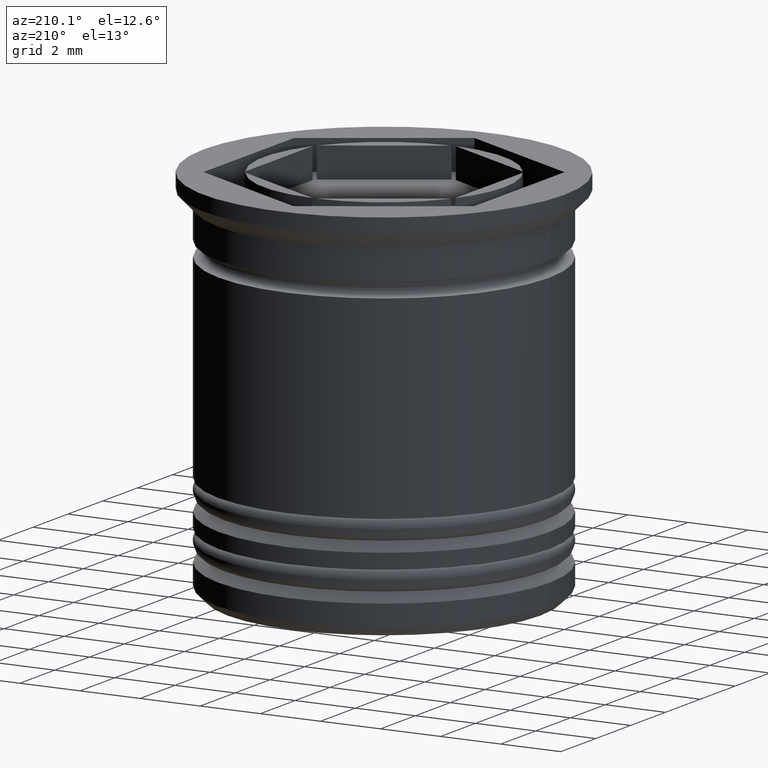
[diagram: clean part render]
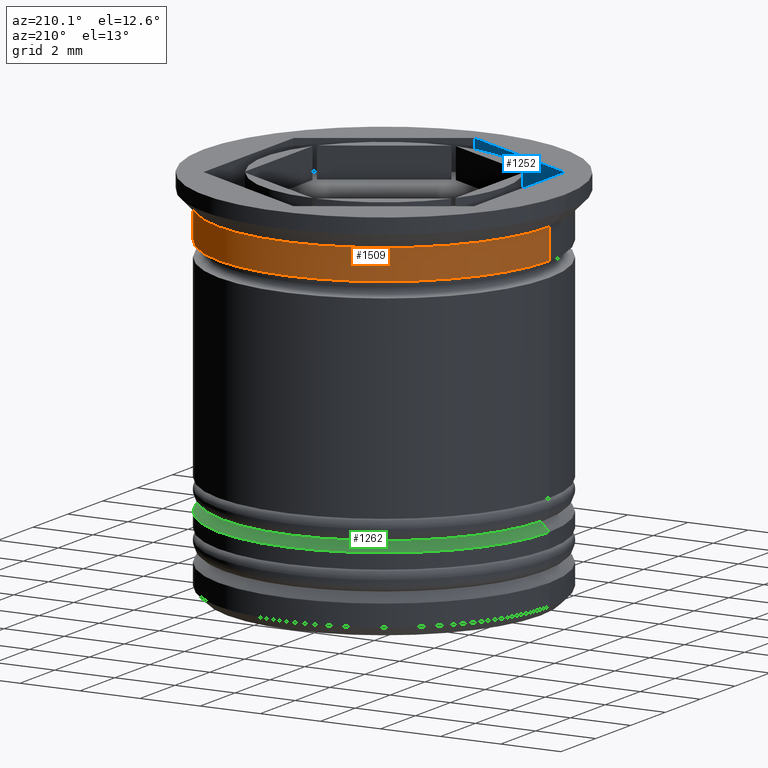
[diagram: same view with three faces highlighted in distinct colors, each labeled with its STEP entity id]
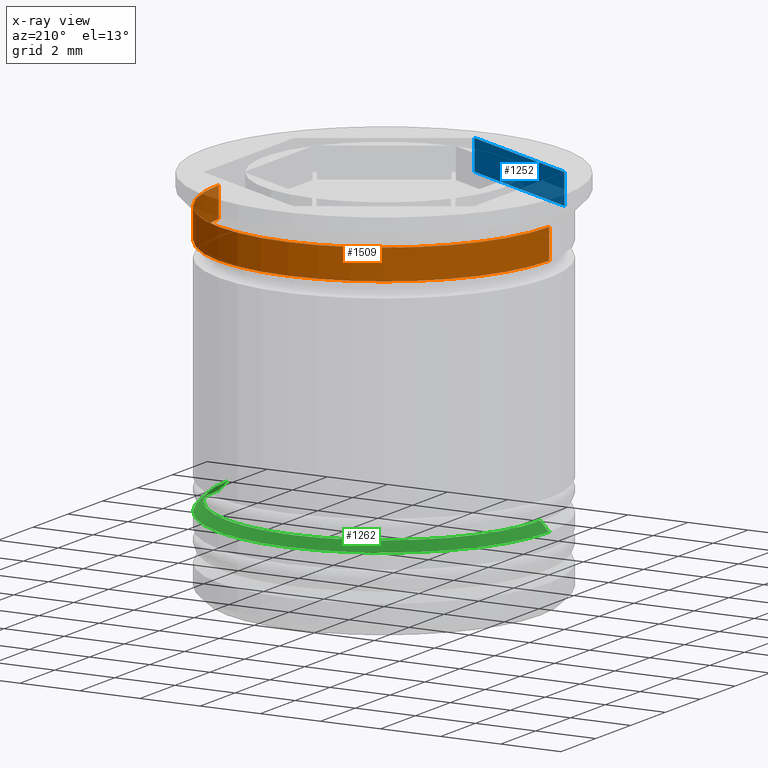
[diagram: x-ray of the same camera — body ghosted, the three highlighted faces saturated]
A machine part, auxiliary view with three faces highlighted in distinct colors.
The next image is the same camera in x-ray (body ghosted, the three faces saturated) — at least one of them is partly hidden behind the body in this view.
Their STEP definitions:

[orange] entity #1509 — the highlighted cylindrical surface (partial cylindrical patch) has radius 5.5 mm, axis along (-0, -0, 1).
#35 = AXIS2_PLACEMENT_3D ( 'NONE', #255, #1148, #1163 ) ;
#45 = EDGE_LOOP ( 'NONE', ( #1837, #1501, #1808, #1612 ) ) ;
#102 = DIRECTION ( 'NONE',  ( -0.000000000000000000, -0.000000000000000000, 1.000000000000000000 ) ) ;
#145 = VERTEX_POINT ( 'NONE', #224 ) ;
#224 = CARTESIAN_POINT ( 'NONE',  ( -5.499999999999998224, 6.735557395310440051E-16, -0.9999999999999997780 ) ) ;
#251 = VERTEX_POINT ( 'NONE', #1050 ) ;
#255 = CARTESIAN_POINT ( 'NONE',  ( 0.000000000000000000, 0.000000000000000000, -0.9999999999999997780 ) ) ;
#393 = CARTESIAN_POINT ( 'NONE',  ( 0.000000000000000000, 0.000000000000000000, 0.000000000000000000 ) ) ;
#454 = DIRECTION ( 'NONE',  ( 1.000000000000000000, 0.000000000000000000, 0.000000000000000000 ) ) ;
#545 = CIRCLE ( 'NONE', #611, 5.499999999999999112 ) ;
#603 = VERTEX_POINT ( 'NONE', #1742 ) ;
#610 = EDGE_CURVE ( 'NONE', #1484, #603, #1957, .T. ) ;
#611 = AXIS2_PLACEMENT_3D ( 'NONE', #1762, #1690, #454 ) ;
#710 = CARTESIAN_POINT ( 'NONE',  ( 5.499999999999999112, 0.000000000000000000, -2.000000000000000444 ) ) ;
#803 = CIRCLE ( 'NONE', #35, 5.499999999999998224 ) ;
#881 = CARTESIAN_POINT ( 'NONE',  ( -5.499999999999998224, 6.735557395310440051E-16, 0.000000000000000000 ) ) ;
#891 = DIRECTION ( 'NONE',  ( -0.000000000000000000, -0.000000000000000000, 1.000000000000000000 ) ) ;
#1050 = CARTESIAN_POINT ( 'NONE',  ( -5.499999999999999112, 6.735557395310442023E-16, -2.000000000000000444 ) ) ;
#1090 = AXIS2_PLACEMENT_3D ( 'NONE', #393, #102, #1605 ) ;
#1148 = DIRECTION ( 'NONE',  ( -0.000000000000000000, -0.000000000000000000, 1.000000000000000000 ) ) ;
#1163 = DIRECTION ( 'NONE',  ( 1.000000000000000000, 0.000000000000000000, 0.000000000000000000 ) ) ;
#1330 = LINE ( 'NONE', #881, #1927 ) ;
#1470 = EDGE_CURVE ( 'NONE', #603, #145, #803, .T. ) ;
#1484 = VERTEX_POINT ( 'NONE', #710 ) ;
#1493 = DIRECTION ( 'NONE',  ( -0.000000000000000000, -0.000000000000000000, 1.000000000000000000 ) ) ;
#1501 = ORIENTED_EDGE ( 'NONE', *, *, #1540, .T. ) ;
#1509 = ADVANCED_FACE ( 'NONE', ( #1644 ), #1940, .T. ) ;
#1540 = EDGE_CURVE ( 'NONE', #251, #145, #1330, .T. ) ;
#1548 = EDGE_CURVE ( 'NONE', #1484, #251, #545, .T. ) ;
#1594 = VECTOR ( 'NONE', #891, 1000.000000000000000 ) ;
#1605 = DIRECTION ( 'NONE',  ( 1.000000000000000000, 0.000000000000000000, 0.000000000000000000 ) ) ;
#1612 = ORIENTED_EDGE ( 'NONE', *, *, #610, .F. ) ;
#1644 = FACE_OUTER_BOUND ( 'NONE', #45, .T. ) ;
#1690 = DIRECTION ( 'NONE',  ( -0.000000000000000000, -0.000000000000000000, 1.000000000000000000 ) ) ;
#1742 = CARTESIAN_POINT ( 'NONE',  ( 5.499999999999998224, 0.000000000000000000, -0.9999999999999997780 ) ) ;
#1762 = CARTESIAN_POINT ( 'NONE',  ( 0.000000000000000000, 0.000000000000000000, -2.000000000000000444 ) ) ;
#1808 = ORIENTED_EDGE ( 'NONE', *, *, #1470, .F. ) ;
#1837 = ORIENTED_EDGE ( 'NONE', *, *, #1548, .T. ) ;
#1927 = VECTOR ( 'NONE', #1493, 1000.000000000000000 ) ;
#1940 = CYLINDRICAL_SURFACE ( 'NONE', #1090, 5.499999999999998224 ) ;
#1957 = LINE ( 'NONE', #1978, #1594 ) ;
#1978 = CARTESIAN_POINT ( 'NONE',  ( 5.499999999999998224, 0.000000000000000000, 0.000000000000000000 ) ) ;

[blue] entity #1252 — the highlighted planar face has unit normal (-0.5, -0.866, 0).
#130 = DIRECTION ( 'NONE',  ( 0.8660254037844385966, -0.5000000000000000000, 0.000000000000000000 ) ) ;
#138 = CARTESIAN_POINT ( 'NONE',  ( -4.500000000000000888, -2.598076211353316456, -1.000000000000000000 ) ) ;
#158 = CARTESIAN_POINT ( 'NONE',  ( -4.500000000000000888, -2.598076211353316456, 0.000000000000000000 ) ) ;
#270 = VECTOR ( 'NONE', #715, 1000.000000000000000 ) ;
#293 = EDGE_CURVE ( 'NONE', #1880, #1160, #1321, .T. ) ;
#322 = LINE ( 'NONE', #138, #1456 ) ;
#338 = VERTEX_POINT ( 'NONE', #1825 ) ;
#443 = CARTESIAN_POINT ( 'NONE',  ( -3.394223061414856671E-17, -5.196152422706632912, -1.000000000000000000 ) ) ;
#571 = VECTOR ( 'NONE', #1845, 1000.000000000000227 ) ;
#575 = CARTESIAN_POINT ( 'NONE',  ( -3.394223061414856671E-17, -5.196152422706632912, -1.000000000000000000 ) ) ;
#581 = CARTESIAN_POINT ( 'NONE',  ( -3.394223061414856671E-17, -5.196152422706632912, 0.000000000000000000 ) ) ;
#645 = ORIENTED_EDGE ( 'NONE', *, *, #769, .T. ) ;
#664 = VECTOR ( 'NONE', #1681, 1000.000000000000227 ) ;
#671 = AXIS2_PLACEMENT_3D ( 'NONE', #1964, #1931, #130 ) ;
#679 = VERTEX_POINT ( 'NONE', #581 ) ;
#715 = DIRECTION ( 'NONE',  ( -0.000000000000000000, -0.000000000000000000, 1.000000000000000000 ) ) ;
#756 = DIRECTION ( 'NONE',  ( -0.000000000000000000, -0.000000000000000000, 1.000000000000000000 ) ) ;
#769 = EDGE_CURVE ( 'NONE', #338, #679, #1565, .T. ) ;
#842 = FACE_OUTER_BOUND ( 'NONE', #1682, .T. ) ;
#888 = PLANE ( 'NONE',  #671 ) ;
#1070 = CARTESIAN_POINT ( 'NONE',  ( -4.500000000000000888, -2.598076211353316456, -1.000000000000000000 ) ) ;
#1160 = VERTEX_POINT ( 'NONE', #443 ) ;
#1252 = ADVANCED_FACE ( 'NONE', ( #842 ), #888, .F. ) ;
#1255 = LINE ( 'NONE', #575, #270 ) ;
#1321 = LINE ( 'NONE', #1070, #664 ) ;
#1322 = ORIENTED_EDGE ( 'NONE', *, *, #1873, .F. ) ;
#1326 = CARTESIAN_POINT ( 'NONE',  ( -4.500000000000000888, -2.598076211353316456, -1.000000000000000000 ) ) ;
#1456 = VECTOR ( 'NONE', #756, 1000.000000000000000 ) ;
#1565 = LINE ( 'NONE', #158, #571 ) ;
#1575 = ORIENTED_EDGE ( 'NONE', *, *, #293, .F. ) ;
#1681 = DIRECTION ( 'NONE',  ( 0.8660254037844385966, -0.5000000000000000000, 0.000000000000000000 ) ) ;
#1682 = EDGE_LOOP ( 'NONE', ( #645, #1322, #1575, #1709 ) ) ;
#1703 = EDGE_CURVE ( 'NONE', #1880, #338, #322, .T. ) ;
#1709 = ORIENTED_EDGE ( 'NONE', *, *, #1703, .T. ) ;
#1825 = CARTESIAN_POINT ( 'NONE',  ( -4.500000000000000888, -2.598076211353316456, 0.000000000000000000 ) ) ;
#1845 = DIRECTION ( 'NONE',  ( 0.8660254037844385966, -0.5000000000000000000, 0.000000000000000000 ) ) ;
#1873 = EDGE_CURVE ( 'NONE', #1160, #679, #1255, .T. ) ;
#1880 = VERTEX_POINT ( 'NONE', #1326 ) ;
#1931 = DIRECTION ( 'NONE',  ( -0.5000000000000001110, -0.8660254037844387076, 0.000000000000000000 ) ) ;
#1964 = CARTESIAN_POINT ( 'NONE',  ( -4.500000000000000888, -2.598076211353316456, -1.000000000000000000 ) ) ;

[green] entity #1262 — the highlighted conical surface has half-angle 45 deg.
#17 = LINE ( 'NONE', #633, #1853 ) ;
#64 = EDGE_CURVE ( 'NONE', #139, #484, #17, .T. ) ;
#108 = AXIS2_PLACEMENT_3D ( 'NONE', #1471, #1317, #1939 ) ;
#128 = EDGE_LOOP ( 'NONE', ( #1847, #153, #573, #1389 ) ) ;
#139 = VERTEX_POINT ( 'NONE', #231 ) ;
#153 = ORIENTED_EDGE ( 'NONE', *, *, #330, .T. ) ;
#164 = CARTESIAN_POINT ( 'NONE',  ( 5.200000000000000178, 0.000000000000000000, -9.700000000000006395 ) ) ;
#219 = AXIS2_PLACEMENT_3D ( 'NONE', #268, #542, #1800 ) ;
#231 = CARTESIAN_POINT ( 'NONE',  ( -5.200000000000000178, 6.368163355566236381E-16, -9.700000000000006395 ) ) ;
#268 = CARTESIAN_POINT ( 'NONE',  ( 0.000000000000000000, 0.000000000000000000, -9.500000000000001776 ) ) ;
#330 = EDGE_CURVE ( 'NONE', #411, #1108, #1943, .T. ) ;
#411 = VERTEX_POINT ( 'NONE', #164 ) ;
#447 = CARTESIAN_POINT ( 'NONE',  ( 0.000000000000000000, 0.000000000000000000, -10.00000000000000533 ) ) ;
#470 = CIRCLE ( 'NONE', #108, 5.200000000000000178 ) ;
#479 = AXIS2_PLACEMENT_3D ( 'NONE', #447, #773, #1670 ) ;
#484 = VERTEX_POINT ( 'NONE', #1091 ) ;
#542 = DIRECTION ( 'NONE',  ( 0.000000000000000000, 0.000000000000000000, -1.000000000000000000 ) ) ;
#573 = ORIENTED_EDGE ( 'NONE', *, *, #1412, .F. ) ;
#633 = CARTESIAN_POINT ( 'NONE',  ( -4.999999999999992006, 0.000000000000000000, -9.500000000000001776 ) ) ;
#739 = CARTESIAN_POINT ( 'NONE',  ( 4.999999999999992006, 6.123233995736756422E-16, -9.500000000000001776 ) ) ;
#773 = DIRECTION ( 'NONE',  ( 0.000000000000000000, 0.000000000000000000, -1.000000000000000000 ) ) ;
#1091 = CARTESIAN_POINT ( 'NONE',  ( -5.500000000000001776, 6.735557395310443995E-16, -10.00000000000000533 ) ) ;
#1108 = VERTEX_POINT ( 'NONE', #1265 ) ;
#1115 = VECTOR ( 'NONE', #1334, 1000.000000000000000 ) ;
#1180 = CONICAL_SURFACE ( 'NONE', #219, 4.999999999999992006, 0.7853981633974533860 ) ;
#1243 = DIRECTION ( 'NONE',  ( -0.7071067811865512365, 0.000000000000000000, -0.7071067811865439090 ) ) ;
#1262 = ADVANCED_FACE ( 'NONE', ( #1603 ), #1180, .T. ) ;
#1265 = CARTESIAN_POINT ( 'NONE',  ( 5.500000000000001776, 0.000000000000000000, -10.00000000000000533 ) ) ;
#1317 = DIRECTION ( 'NONE',  ( -0.000000000000000000, -0.000000000000000000, 1.000000000000000000 ) ) ;
#1334 = DIRECTION ( 'NONE',  ( 0.7071067811865512365, 8.659560562354978464E-17, -0.7071067811865439090 ) ) ;
#1374 = CIRCLE ( 'NONE', #479, 5.500000000000001776 ) ;
#1389 = ORIENTED_EDGE ( 'NONE', *, *, #64, .F. ) ;
#1412 = EDGE_CURVE ( 'NONE', #484, #1108, #1374, .T. ) ;
#1471 = CARTESIAN_POINT ( 'NONE',  ( 0.000000000000000000, 0.000000000000000000, -9.700000000000006395 ) ) ;
#1603 = FACE_OUTER_BOUND ( 'NONE', #128, .T. ) ;
#1670 = DIRECTION ( 'NONE',  ( -1.000000000000000000, 0.000000000000000000, 0.000000000000000000 ) ) ;
#1800 = DIRECTION ( 'NONE',  ( -1.000000000000000000, 0.000000000000000000, 0.000000000000000000 ) ) ;
#1847 = ORIENTED_EDGE ( 'NONE', *, *, #1956, .F. ) ;
#1853 = VECTOR ( 'NONE', #1243, 1000.000000000000000 ) ;
#1939 = DIRECTION ( 'NONE',  ( -1.000000000000000000, 0.000000000000000000, 0.000000000000000000 ) ) ;
#1943 = LINE ( 'NONE', #739, #1115 ) ;
#1956 = EDGE_CURVE ( 'NONE', #411, #139, #470, .T. ) ;